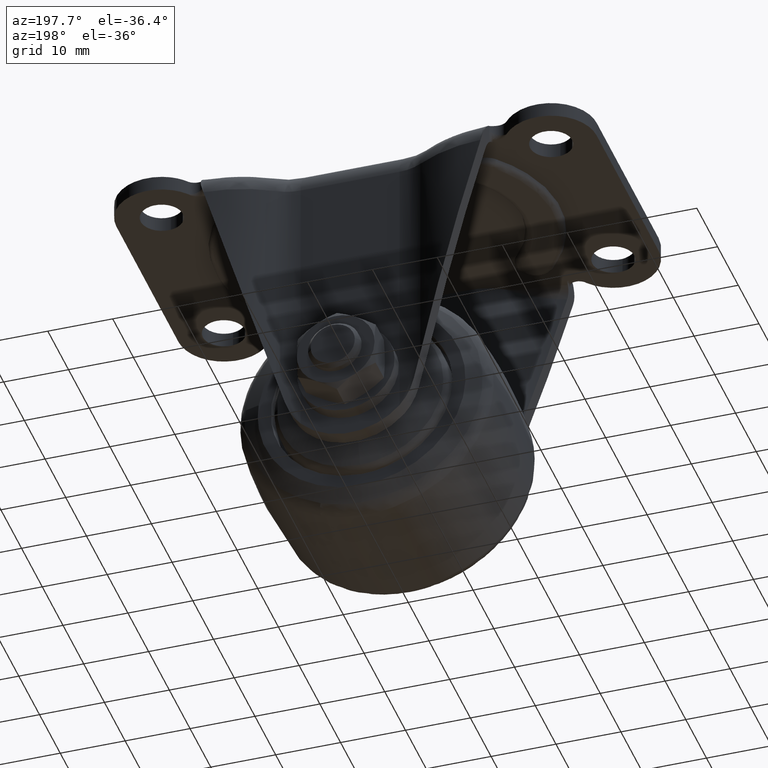
[diagram: clean part render]
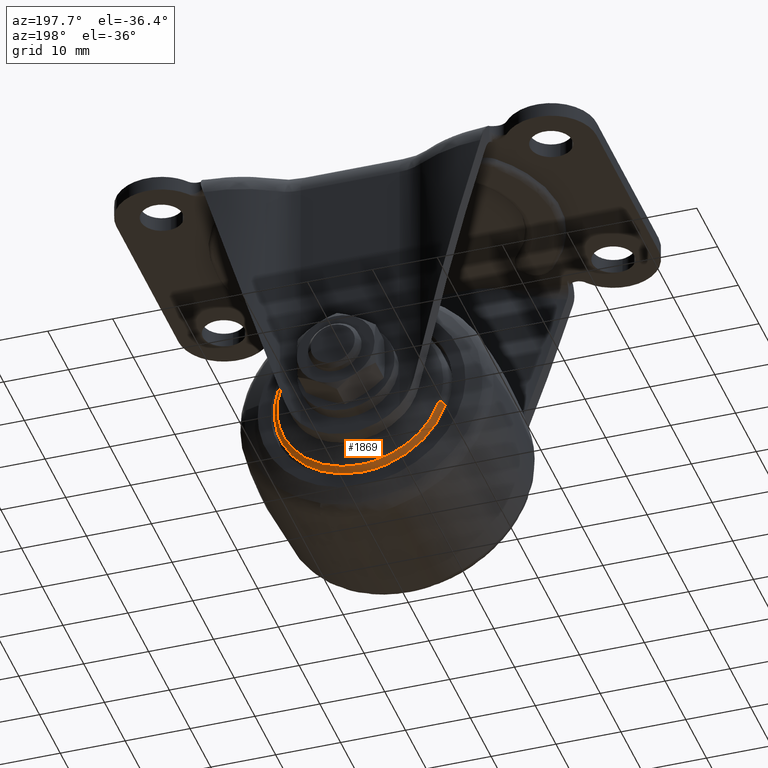
[diagram: same view with one face highlighted and labeled with its STEP entity id]
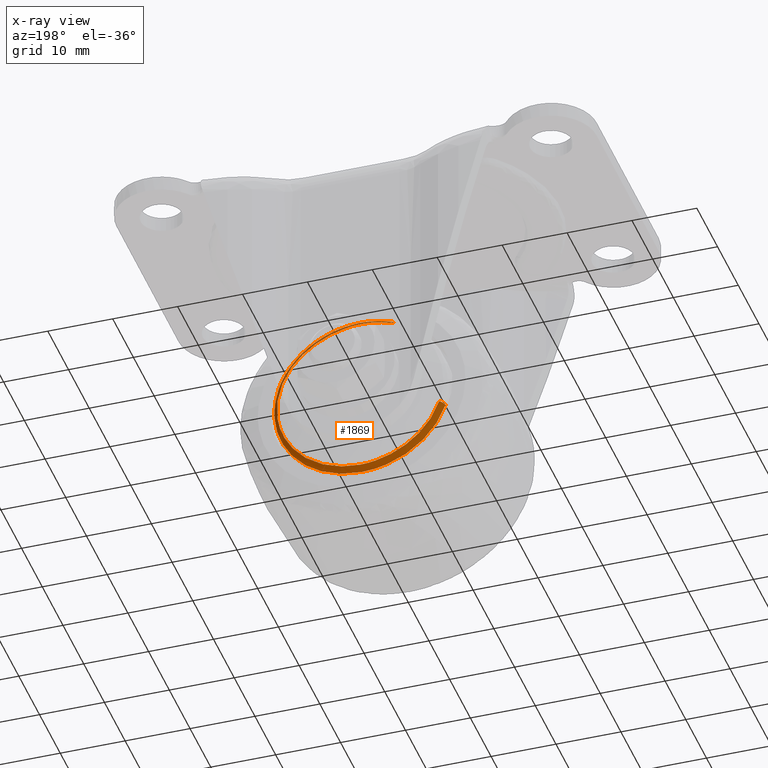
[diagram: x-ray of the same camera — body ghosted, the highlighted face saturated]
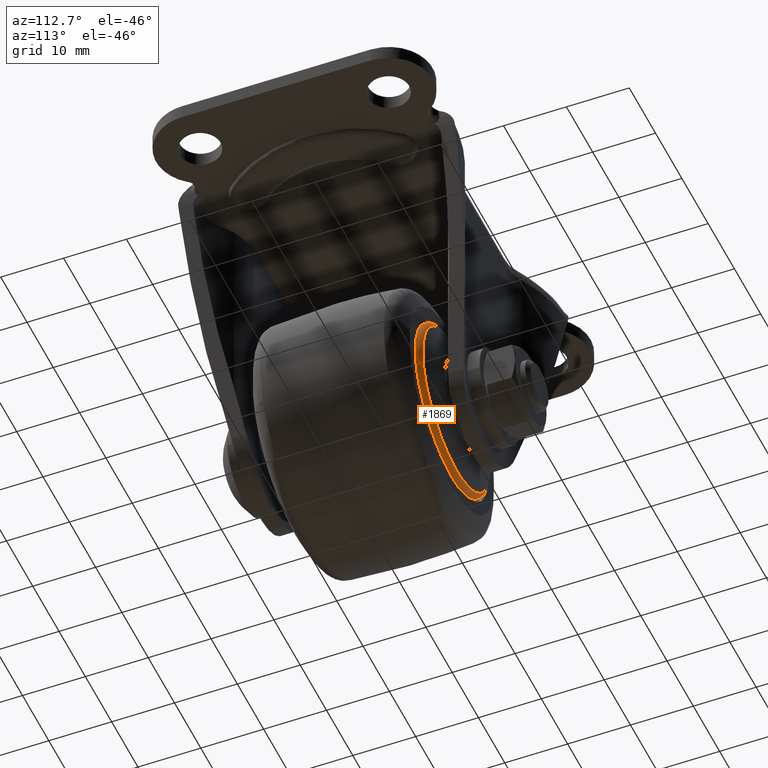
[diagram: same view with one face highlighted and labeled with its STEP entity id]
A machine part, auxiliary view. The second image highlights one B-rep face of the part: STEP entity #1869.
The next image is the same camera in x-ray: the body ghosted, the highlighted face saturated — about 8% of this face is hidden behind the body in this view.
A second angle (auxiliary view) of the same face is appended — the face is thin or edge-on in the first view.
In plain terms, the highlighted face is a freeform B-spline surface patch.
Its self-contained STEP definition (entity closure, byte-faithful):
#70=CARTESIAN_POINT('',(4.746830855255180,12.290245000000629,-27.362057254780812));
#71=VERTEX_POINT('',#70);
#72=CARTESIAN_POINT('',(0.0,12.290244999999921,-26.500000000000000));
#73=VERTEX_POINT('',#72);
#74=CARTESIAN_POINT('',(4.746830855255180,12.290245000000624,-27.362057254780812));
#75=CARTESIAN_POINT('',(2.451693202123967,12.290244999999919,-26.500000000000000));
#76=CARTESIAN_POINT('',(0.0,12.290244999999921,-26.500000000000000));
#84=(BOUNDED_CURVE()B_SPLINE_CURVE(2,(#74,#75,#76),.UNSPECIFIED.,.F.,.U.)B_SPLINE_CURVE_WITH_KNOTS((3,3),(0.440284318364045,0.500000000000000),.UNSPECIFIED.)CURVE()GEOMETRIC_REPRESENTATION_ITEM()RATIONAL_B_SPLINE_CURVE((0.893499735098291,0.930038727168023,1.0))REPRESENTATION_ITEM(''));
#85=EDGE_CURVE('',#71,#73,#84,.T.);
#87=CARTESIAN_POINT('',(-4.899207888863685,12.290245000259819,-27.420343602044628));
#88=VERTEX_POINT('',#87);
#89=CARTESIAN_POINT('',(0.0,12.290244999999921,-26.500000000000000));
#90=CARTESIAN_POINT('',(-2.536049790892336,12.290244999999924,-26.500000000000007));
#91=CARTESIAN_POINT('',(-4.899207888863685,12.290245000259819,-27.420343602044625));
#99=(BOUNDED_CURVE()B_SPLINE_CURVE(2,(#89,#90,#91),.UNSPECIFIED.,.F.,.U.)B_SPLINE_CURVE_WITH_KNOTS((3,3),(0.500000000000000,0.561622011888478),.UNSPECIFIED.)CURVE()GEOMETRIC_REPRESENTATION_ITEM()RATIONAL_B_SPLINE_CURVE((1.0,0.927805322352891,0.891200894979822))REPRESENTATION_ITEM(''));
#100=EDGE_CURVE('',#73,#88,#99,.T.);
#102=CARTESIAN_POINT('',(-12.839262724426460,12.290245000256400,-44.171729344298001));
#103=VERTEX_POINT('',#102);
#119=CARTESIAN_POINT('',(0.0,12.290244999999921,-53.500000000000000));
#120=VERTEX_POINT('',#119);
#121=CARTESIAN_POINT('',(-12.839262724426453,12.290245000256405,-44.171729344298008));
#122=CARTESIAN_POINT('',(-9.808324128039127,12.290244999999919,-53.500000000000007));
#123=CARTESIAN_POINT('',(0.0,12.290244999999921,-53.500000000000000));
#131=(BOUNDED_CURVE()B_SPLINE_CURVE(2,(#121,#122,#123),.UNSPECIFIED.,.F.,.U.)B_SPLINE_CURVE_WITH_KNOTS((3,3),(0.802549825474400,1.0),.UNSPECIFIED.)CURVE()GEOMETRIC_REPRESENTATION_ITEM()RATIONAL_B_SPLINE_CURVE((0.902750339223672,0.768672731311676,1.0))REPRESENTATION_ITEM(''));
#132=EDGE_CURVE('',#103,#120,#131,.T.);
#134=CARTESIAN_POINT('',(13.474821024884580,12.290245000000770,-40.824134908198772));
#135=VERTEX_POINT('',#134);
#136=CARTESIAN_POINT('',(0.0,12.290244999999921,-53.500000000000000));
#137=CARTESIAN_POINT('',(12.699551142318356,12.290244999999919,-53.500000000000007));
#138=CARTESIAN_POINT('',(13.474821024884578,12.290245000000777,-40.824134908198765));
#146=(BOUNDED_CURVE()B_SPLINE_CURVE(2,(#136,#137,#138),.UNSPECIFIED.,.F.,.U.)B_SPLINE_CURVE_WITH_KNOTS((3,3),(0.0,0.239333223153181),.UNSPECIFIED.)CURVE()GEOMETRIC_REPRESENTATION_ITEM()RATIONAL_B_SPLINE_CURVE((1.0,0.719603687606667,0.976072600856234))REPRESENTATION_ITEM(''));
#147=EDGE_CURVE('',#120,#135,#146,.T.);
#229=CARTESIAN_POINT('',(13.474821024884577,12.290245000000777,-40.824134908198772));
#230=CARTESIAN_POINT('',(13.499999999999996,12.290244999999915,-40.412452088205740));
#231=CARTESIAN_POINT('',(13.500000000000000,12.290244999999921,-40.0));
#232=CARTESIAN_POINT('',(13.500000000000005,12.290244999999921,-30.649761133102352));
#233=CARTESIAN_POINT('',(4.746830855255180,12.290245000000624,-27.362057254780812));
#241=(BOUNDED_CURVE()B_SPLINE_CURVE(2,(#229,#230,#231,#232,#233),.UNSPECIFIED.,.F.,.U.)B_SPLINE_CURVE_WITH_KNOTS((3,2,3),(0.239333223153181,0.250000000000000,0.440284318364045),.UNSPECIFIED.)CURVE()GEOMETRIC_REPRESENTATION_ITEM()RATIONAL_B_SPLINE_CURVE((0.976072600856234,0.987503093579881,1.0,0.777068054018524,0.893499735098291))REPRESENTATION_ITEM(''));
#242=EDGE_CURVE('',#135,#71,#241,.T.);
#1716=CARTESIAN_POINT('',(-4.651898826168571,13.238157977873170,-28.055357079078370));
#1717=VERTEX_POINT('',#1716);
#1718=CARTESIAN_POINT('',(-12.191143768491260,13.238158417914930,-43.961142730211847));
#1719=VERTEX_POINT('',#1718);
#1735=CARTESIAN_POINT('',(-12.191143768491264,13.238158417914935,-43.961142730211847));
#1736=CARTESIAN_POINT('',(-12.839262478531056,13.009163186004226,-44.171729264378861));
#1737=CARTESIAN_POINT('',(-12.839262724426458,12.290245000256407,-44.171729344297994));
#1745=(BOUNDED_CURVE()B_SPLINE_CURVE(2,(#1735,#1736,#1737),.UNSPECIFIED.,.F.,.U.)B_SPLINE_CURVE_WITH_KNOTS((3,3),(-1.676155619963165,-0.326791988176372),.UNSPECIFIED.)CURVE()GEOMETRIC_REPRESENTATION_ITEM()RATIONAL_B_SPLINE_CURVE((0.899218275566237,0.729820873435275,0.898479810712000))REPRESENTATION_ITEM(''));
#1746=EDGE_CURVE('',#1719,#103,#1745,.T.);
#1749=CARTESIAN_POINT('',(-4.651898826168571,13.238157977873170,-28.055357079078370));
#1750=CARTESIAN_POINT('',(-4.899207795020744,13.009162542514600,-27.420343842975448));
#1751=CARTESIAN_POINT('',(-4.899207888863685,12.290245000259821,-27.420343602044632));
#1759=(BOUNDED_CURVE()B_SPLINE_CURVE(2,(#1749,#1750,#1751),.UNSPECIFIED.,.F.,.U.)B_SPLINE_CURVE_WITH_KNOTS((3,3),(-1.676154638892647,-0.326791988184263),.UNSPECIFIED.)CURVE()GEOMETRIC_REPRESENTATION_ITEM()RATIONAL_B_SPLINE_CURVE((0.878990839763337,0.713404257192396,0.878269226866359))REPRESENTATION_ITEM(''));
#1760=EDGE_CURVE('',#1717,#88,#1759,.T.);
#1765=CARTESIAN_POINT('',(-12.138618884414994,13.254958684224860,-43.944076360611149));
#1766=CARTESIAN_POINT('',(-8.194542523803857,13.254958684224867,-56.082695245026159));
#1767=CARTESIAN_POINT('',(3.944076360611140,13.254958684224860,-52.138618884414996));
#1768=CARTESIAN_POINT('',(16.082695245026148,13.254958684224867,-48.194542523803861));
#1769=CARTESIAN_POINT('',(12.138618884414994,13.254958684224860,-36.055923639388872));
#1770=CARTESIAN_POINT('',(8.194542523803857,13.254958684224867,-23.917304754973873));
#1771=CARTESIAN_POINT('',(-3.944076360611137,13.254958684224860,-27.861381115585001));
#1772=CARTESIAN_POINT('',(-4.291478417979700,13.254958684224873,-27.974258886535875));
#1773=CARTESIAN_POINT('',(-4.631856102231311,13.254958684224867,-28.106820618201770));
#1774=CARTESIAN_POINT('',(-12.882185543991826,13.041573283752738,-44.185675813769755));
#1775=CARTESIAN_POINT('',(-8.696509730222070,13.041573283752744,-57.067861357761593));
#1776=CARTESIAN_POINT('',(4.185675813769759,13.041573283752738,-52.882185543991824));
#1777=CARTESIAN_POINT('',(17.067861357761586,13.041573283752744,-48.696509730222068));
#1778=CARTESIAN_POINT('',(12.882185543991826,13.041573283752738,-35.814324186230238));
#1779=CARTESIAN_POINT('',(8.696509730222070,13.041573283752744,-22.932138642238417));
#1780=CARTESIAN_POINT('',(-4.185675813769758,13.041573283752738,-27.117814456008169));
#1781=CARTESIAN_POINT('',(-4.554358429477564,13.041573283752742,-27.237606699510298));
#1782=CARTESIAN_POINT('',(-4.915586385088995,13.041573283752744,-27.378288669972800));
#1783=CARTESIAN_POINT('',(-12.837675338488543,12.232496842812347,-44.171213571318361));
#1784=CARTESIAN_POINT('',(-8.666461767170176,12.232496842812347,-57.008888909806906));
#1785=CARTESIAN_POINT('',(4.171213571318370,12.232496842812347,-52.837675338488545));
#1786=CARTESIAN_POINT('',(17.008888909806910,12.232496842812347,-48.666461767170176));
#1787=CARTESIAN_POINT('',(12.837675338488543,12.232496842812347,-35.828786428681632));
#1788=CARTESIAN_POINT('',(8.666461767170178,12.232496842812347,-22.991111090193090));
#1789=CARTESIAN_POINT('',(-4.171213571318368,12.232496842812347,-27.162324661511455));
#1790=CARTESIAN_POINT('',(-4.538622324067548,12.232496842812344,-27.281703001848030));
#1791=CARTESIAN_POINT('',(-4.898602173875591,12.232496842812347,-27.421898891482524));
#1799=(BOUNDED_SURFACE()B_SPLINE_SURFACE(2,2,((#1765,#1774,#1783),(#1766,#1775,#1784),(#1767,#1776,#1785),(#1768,#1777,#1786),(#1769,#1778,#1787),(#1770,#1779,#1788),(#1771,#1780,#1789),(#1772,#1781,#1790),(#1773,#1782,#1791)),.UNSPECIFIED.,.F.,.F.,.U.)B_SPLINE_SURFACE_WITH_KNOTS((3,2,2,2,3),(3,3),(0.0,22.364766524113950,44.729533048227893,67.094299572341839,67.988890233306392),(0.0,1.417350453922823),.UNSPECIFIED.)GEOMETRIC_REPRESENTATION_ITEM()RATIONAL_B_SPLINE_SURFACE(((0.916985789802210,0.712090859750341,0.916172328699551),(0.648406870220844,0.503524275750425,0.647831666358923),(0.916985789802210,0.712090859750341,0.916172328699551),(0.648406870220844,0.503524275750425,0.647831666358923),(0.916985789802210,0.712090859750341,0.916172328699551),(0.648406870220844,0.503524275750425,0.647831666358923),(0.916985789802210,0.712090859750341,0.916172328699551),(0.906242633018955,0.703748196390344,0.905438702205925),(0.896358928778361,0.696072946099147,0.895563765831790)))REPRESENTATION_ITEM('')SURFACE());
#1800=CARTESIAN_POINT('',(0.0,13.238157976400140,-27.181472204634701));
#1801=VERTEX_POINT('',#1800);
#1802=CARTESIAN_POINT('',(0.0,13.238157976400140,-27.181472204634701));
#1803=CARTESIAN_POINT('',(-2.408031480843011,13.238157976400151,-27.181472204634705));
#1804=CARTESIAN_POINT('',(-4.651898826168571,13.238157977873174,-28.055357079078370));
#1812=(BOUNDED_CURVE()B_SPLINE_CURVE(2,(#1802,#1803,#1804),.UNSPECIFIED.,.F.,.U.)B_SPLINE_CURVE_WITH_KNOTS((3,3),(0.500000000000000,0.561622012339408),.UNSPECIFIED.)CURVE()GEOMETRIC_REPRESENTATION_ITEM()RATIONAL_B_SPLINE_CURVE((1.0,0.927805321824593,0.891200894444103))REPRESENTATION_ITEM(''));
#1813=EDGE_CURVE('',#1801,#1717,#1812,.T.);
#1814=ORIENTED_EDGE('',*,*,#1813,.T.);
#1815=ORIENTED_EDGE('',*,*,#1760,.T.);
#1816=ORIENTED_EDGE('',*,*,#100,.F.);
#1817=ORIENTED_EDGE('',*,*,#85,.F.);
#1818=ORIENTED_EDGE('',*,*,#242,.F.);
#1819=ORIENTED_EDGE('',*,*,#147,.F.);
#1820=ORIENTED_EDGE('',*,*,#132,.F.);
#1821=ORIENTED_EDGE('',*,*,#1746,.F.);
#1822=CARTESIAN_POINT('',(0.0,13.238158959320531,-52.818524870271652));
#1823=VERTEX_POINT('',#1822);
#1824=CARTESIAN_POINT('',(-12.191143768491262,13.238158417914924,-43.961142730211847));
#1825=CARTESIAN_POINT('',(-9.313204198464371,13.238158959320540,-52.818524870271645));
#1826=CARTESIAN_POINT('',(0.0,13.238158959320531,-52.818524870271652));
#1834=(BOUNDED_CURVE()B_SPLINE_CURVE(2,(#1824,#1825,#1826),.UNSPECIFIED.,.F.,.U.)B_SPLINE_CURVE_WITH_KNOTS((3,3),(0.802549848147285,1.0),.UNSPECIFIED.)CURVE()GEOMETRIC_REPRESENTATION_ITEM()RATIONAL_B_SPLINE_CURVE((0.902750308431846,0.768672757874613,1.0))REPRESENTATION_ITEM(''));
#1835=EDGE_CURVE('',#1719,#1823,#1834,.T.);
#1836=ORIENTED_EDGE('',*,*,#1835,.T.);
#1837=CARTESIAN_POINT('',(12.732792851293350,13.238157976355620,-41.480081433571300));
#1838=VERTEX_POINT('',#1837);
#1839=CARTESIAN_POINT('',(0.0,13.238158959320531,-52.818524870271652));
#1840=CARTESIAN_POINT('',(11.414792617685995,13.238158467838076,-52.818526332547897));
#1841=CARTESIAN_POINT('',(12.732792851293352,13.238157976355616,-41.480081433571300));
#1849=(BOUNDED_CURVE()B_SPLINE_CURVE(2,(#1839,#1840,#1841),.UNSPECIFIED.,.F.,.U.)B_SPLINE_CURVE_WITH_KNOTS((3,3),(0.0,0.229999999985215),.UNSPECIFIED.)CURVE()GEOMETRIC_REPRESENTATION_ITEM()RATIONAL_B_SPLINE_CURVE((1.0,0.730538238708946,0.956886118161559))REPRESENTATION_ITEM(''));
#1850=EDGE_CURVE('',#1823,#1838,#1849,.T.);
#1851=ORIENTED_EDGE('',*,*,#1850,.T.);
#1852=CARTESIAN_POINT('',(12.732792851293354,13.238157976355618,-41.480081433571300));
#1853=CARTESIAN_POINT('',(12.818527795365295,13.238157976400139,-40.742523850922815));
#1854=CARTESIAN_POINT('',(12.818527795365300,13.238157976400140,-40.0));
#1855=CARTESIAN_POINT('',(12.818527795365299,13.238157976400144,-27.181472204634698));
#1856=CARTESIAN_POINT('',(0.0,13.238157976400140,-27.181472204634701));
#1864=(BOUNDED_CURVE()B_SPLINE_CURVE(2,(#1852,#1853,#1854,#1855,#1856),.UNSPECIFIED.,.F.,.U.)B_SPLINE_CURVE_WITH_KNOTS((3,2,3),(0.229999999985215,0.250000000000000,0.500000000000000),.UNSPECIFIED.)CURVE()GEOMETRIC_REPRESENTATION_ITEM()RATIONAL_B_SPLINE_CURVE((0.956886118161559,0.976568542477602,1.0,0.707106781186547,1.0))REPRESENTATION_ITEM(''));
#1865=EDGE_CURVE('',#1838,#1801,#1864,.T.);
#1866=ORIENTED_EDGE('',*,*,#1865,.T.);
#1867=EDGE_LOOP('',(#1814,#1815,#1816,#1817,#1818,#1819,#1820,#1821,#1836,#1851,#1866));
#1868=FACE_OUTER_BOUND('',#1867,.T.);
#1869=ADVANCED_FACE('',(#1868),#1799,.T.);